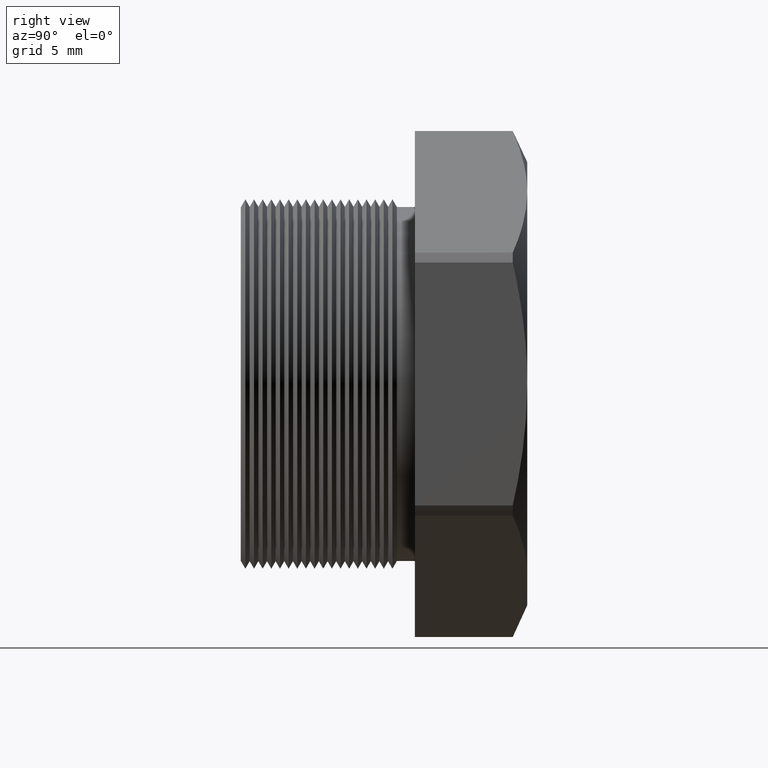
[diagram: clean part render]
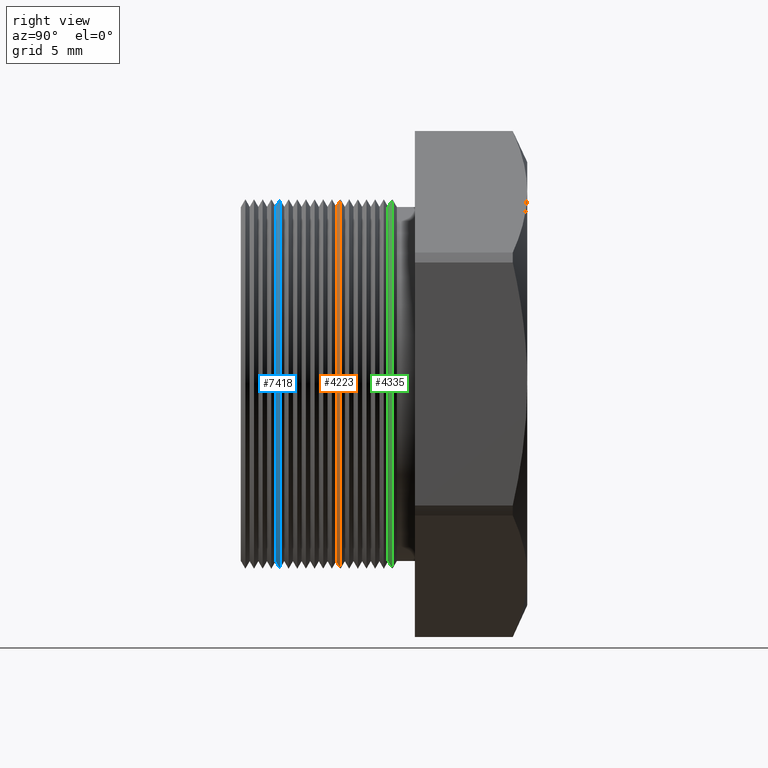
[diagram: same view with three faces highlighted in distinct colors, each labeled with its STEP entity id]
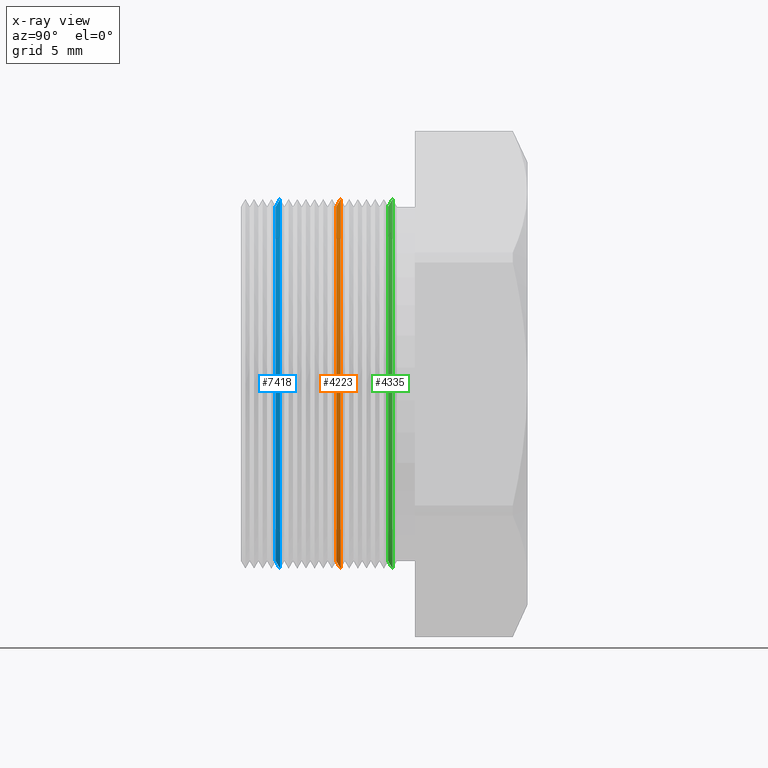
[diagram: x-ray of the same camera — body ghosted, the three highlighted faces saturated]
A machine part, right view with three faces highlighted in distinct colors.
The next image is the same camera in x-ray (body ghosted, the three faces saturated) — at least one of them is partly hidden behind the body in this view.
Their STEP definitions:

[orange] entity #4223 — the highlighted conical surface has half-angle 60 deg.
#1382 = CARTESIAN_POINT ( 'NONE',  ( 0.0000000000000000000, 0.07515489058294794200, -0.3287738815610546400 ) ) ;
#1383 = DIRECTION ( 'NONE',  ( 1.060575238724906300E-016, 0.5000000000000008900, -0.8660254037844380400 ) ) ;
#1384 = VECTOR ( 'NONE', #1383, 39.37007874015748100 ) ;
#1385 = CARTESIAN_POINT ( 'NONE',  ( 4.026318816969965600E-017, 0.07515489058294794200, -0.3287738815610546400 ) ) ;
#1386 = LINE ( 'NONE', #1385, #1384 ) ;
#1387 = DIRECTION ( 'NONE',  ( 0.0000000000000000000, 0.0000000000000000000, 1.000000000000000000 ) ) ;
#1388 = DIRECTION ( 'NONE',  ( -0.0000000000000000000, 1.000000000000000000, -0.0000000000000000000 ) ) ;
#1389 = CARTESIAN_POINT ( 'NONE',  ( 0.0000000000000000000, 0.07515489058294794200, 0.0000000000000000000 ) ) ;
#1390 = AXIS2_PLACEMENT_3D ( 'NONE', #1389, #1388, #1387 ) ;
#1391 = CONICAL_SURFACE ( 'NONE', #1390, 0.3287738815610546400, 1.047197551196596700 ) ;
#1392 = FACE_OUTER_BOUND ( 'NONE', #4224, .T. ) ;
#1417 = CARTESIAN_POINT ( 'NONE',  ( 0.0000000000000000000, 0.06745489058294791600, 0.3154370903427743400 ) ) ;
#1418 = CARTESIAN_POINT ( 'NONE',  ( 3.944654523588147600E-017, 0.06745489058294791600, -0.3154370903427743400 ) ) ;
#1419 = DIRECTION ( 'NONE',  ( 0.0000000000000000000, 0.0000000000000000000, -1.000000000000000000 ) ) ;
#1420 = DIRECTION ( 'NONE',  ( 0.0000000000000000000, -1.000000000000000000, 0.0000000000000000000 ) ) ;
#1421 = CARTESIAN_POINT ( 'NONE',  ( 0.0000000000000000000, 0.06745489058294791600, 0.0000000000000000000 ) ) ;
#1422 = AXIS2_PLACEMENT_3D ( 'NONE', #1421, #1420, #1419 ) ;
#1423 = CIRCLE ( 'NONE', #1422, 0.3154370903427743400 ) ;
#1467 = DIRECTION ( 'NONE',  ( 0.0000000000000000000, 0.5000000000000008900, 0.8660254037844380400 ) ) ;
#1468 = VECTOR ( 'NONE', #1467, 39.37007874015748100 ) ;
#1469 = CARTESIAN_POINT ( 'NONE',  ( 0.0000000000000000000, 0.07515489058294794200, 0.3287738815610546400 ) ) ;
#1470 = LINE ( 'NONE', #1469, #1468 ) ;
#1471 = CARTESIAN_POINT ( 'NONE',  ( 4.026318816969966200E-017, 0.07515489058294794200, 0.3287738815610546400 ) ) ;
#1472 = DIRECTION ( 'NONE',  ( 0.0000000000000000000, 0.0000000000000000000, 1.000000000000000000 ) ) ;
#1473 = DIRECTION ( 'NONE',  ( -0.0000000000000000000, 1.000000000000000000, -0.0000000000000000000 ) ) ;
#1474 = CARTESIAN_POINT ( 'NONE',  ( 0.0000000000000000000, 0.07515489058294794200, 0.0000000000000000000 ) ) ;
#1475 = AXIS2_PLACEMENT_3D ( 'NONE', #1474, #1473, #1472 ) ;
#1476 = CIRCLE ( 'NONE', #1475, 0.3287738815610546400 ) ;
#4223 = ADVANCED_FACE ( 'NONE', ( #1392 ), #1391, .T. ) ;
#4224 = EDGE_LOOP ( 'NONE', ( #4225, #4226, #4229, #4280 ) ) ;
#4225 = ORIENTED_EDGE ( 'NONE', *, *, #4242, .F. ) ;
#4226 = ORIENTED_EDGE ( 'NONE', *, *, #4227, .T. ) ;
#4227 = EDGE_CURVE ( 'NONE', #4243, #4228, #1386, .T. ) ;
#4228 = VERTEX_POINT ( 'NONE', #1382 ) ;
#4229 = ORIENTED_EDGE ( 'NONE', *, *, #4278, .F. ) ;
#4242 = EDGE_CURVE ( 'NONE', #4243, #4244, #1423, .T. ) ;
#4243 = VERTEX_POINT ( 'NONE', #1418 ) ;
#4244 = VERTEX_POINT ( 'NONE', #1417 ) ;
#4278 = EDGE_CURVE ( 'NONE', #4279, #4228, #1476, .T. ) ;
#4279 = VERTEX_POINT ( 'NONE', #1471 ) ;
#4280 = ORIENTED_EDGE ( 'NONE', *, *, #4281, .F. ) ;
#4281 = EDGE_CURVE ( 'NONE', #4244, #4279, #1470, .T. ) ;

[blue] entity #7418 — the highlighted conical surface has half-angle 60 deg.
#3488 = CARTESIAN_POINT ( 'NONE',  ( 4.026318816969966200E-017, -0.03264510941705205100, 0.3287738815610546400 ) ) ;
#3500 = DIRECTION ( 'NONE',  ( 0.0000000000000000000, 0.0000000000000000000, -1.000000000000000000 ) ) ;
#3501 = DIRECTION ( 'NONE',  ( 0.0000000000000000000, -1.000000000000000000, 0.0000000000000000000 ) ) ;
#3502 = CARTESIAN_POINT ( 'NONE',  ( 0.0000000000000000000, -0.04034510941705207700, 0.0000000000000000000 ) ) ;
#3503 = AXIS2_PLACEMENT_3D ( 'NONE', #3502, #3501, #3500 ) ;
#3504 = CIRCLE ( 'NONE', #3503, 0.3154370903427743400 ) ;
#3557 = AXIS2_PLACEMENT_3D ( 'NONE', #3616, #3615, #3614 ) ;
#3558 = CIRCLE ( 'NONE', #3557, 0.3287738815610546400 ) ;
#3559 = DIRECTION ( 'NONE',  ( 0.0000000000000000000, 0.5000000000000008900, 0.8660254037844380400 ) ) ;
#3560 = VECTOR ( 'NONE', #3559, 39.37007874015748100 ) ;
#3561 = CARTESIAN_POINT ( 'NONE',  ( 0.0000000000000000000, -0.03264510941705205100, 0.3287738815610546400 ) ) ;
#3562 = LINE ( 'NONE', #3561, #3560 ) ;
#3614 = DIRECTION ( 'NONE',  ( 0.0000000000000000000, 0.0000000000000000000, 1.000000000000000000 ) ) ;
#3615 = DIRECTION ( 'NONE',  ( -0.0000000000000000000, 1.000000000000000000, -0.0000000000000000000 ) ) ;
#3616 = CARTESIAN_POINT ( 'NONE',  ( 0.0000000000000000000, -0.03264510941705205100, 0.0000000000000000000 ) ) ;
#3748 = CONICAL_SURFACE ( 'NONE', #3992, 0.3287738815610546400, 1.047197551196596700 ) ;
#3980 = CARTESIAN_POINT ( 'NONE',  ( 3.944654523588147600E-017, -0.04034510941705207700, -0.3154370903427743400 ) ) ;
#3992 = AXIS2_PLACEMENT_3D ( 'NONE', #3994, #3993, #4168 ) ;
#3993 = DIRECTION ( 'NONE',  ( -0.0000000000000000000, 1.000000000000000000, -0.0000000000000000000 ) ) ;
#3994 = CARTESIAN_POINT ( 'NONE',  ( 0.0000000000000000000, -0.03264510941705205100, 0.0000000000000000000 ) ) ;
#3995 = FACE_OUTER_BOUND ( 'NONE', #7414, .T. ) ;
#3996 = DIRECTION ( 'NONE',  ( 1.060575238724906300E-016, 0.5000000000000008900, -0.8660254037844380400 ) ) ;
#3997 = VECTOR ( 'NONE', #3996, 39.37007874015748100 ) ;
#3998 = CARTESIAN_POINT ( 'NONE',  ( 4.026318816969965600E-017, -0.03264510941705205100, -0.3287738815610546400 ) ) ;
#3999 = LINE ( 'NONE', #3998, #3997 ) ;
#4000 = CARTESIAN_POINT ( 'NONE',  ( 0.0000000000000000000, -0.03264510941705205100, -0.3287738815610546400 ) ) ;
#4033 = CARTESIAN_POINT ( 'NONE',  ( 0.0000000000000000000, -0.04034510941705207700, 0.3154370903427743400 ) ) ;
#4168 = DIRECTION ( 'NONE',  ( 0.0000000000000000000, 0.0000000000000000000, 1.000000000000000000 ) ) ;
#7100 = ORIENTED_EDGE ( 'NONE', *, *, #7171, .F. ) ;
#7101 = VERTEX_POINT ( 'NONE', #3488 ) ;
#7132 = EDGE_CURVE ( 'NONE', #7397, #7423, #3504, .T. ) ;
#7171 = EDGE_CURVE ( 'NONE', #7423, #7101, #3562, .T. ) ;
#7173 = EDGE_CURVE ( 'NONE', #7101, #7413, #3558, .T. ) ;
#7177 = ORIENTED_EDGE ( 'NONE', *, *, #7173, .F. ) ;
#7397 = VERTEX_POINT ( 'NONE', #3980 ) ;
#7413 = VERTEX_POINT ( 'NONE', #4000 ) ;
#7414 = EDGE_LOOP ( 'NONE', ( #7415, #7416, #7177, #7100 ) ) ;
#7415 = ORIENTED_EDGE ( 'NONE', *, *, #7132, .F. ) ;
#7416 = ORIENTED_EDGE ( 'NONE', *, *, #7417, .T. ) ;
#7417 = EDGE_CURVE ( 'NONE', #7397, #7413, #3999, .T. ) ;
#7418 = ADVANCED_FACE ( 'NONE', ( #3995 ), #3748, .T. ) ;
#7423 = VERTEX_POINT ( 'NONE', #4033 ) ;

[green] entity #4335 — the highlighted conical surface has half-angle 60 deg.
#1560 = CARTESIAN_POINT ( 'NONE',  ( 0.0000000000000000000, 0.1598548905829479100, 0.3154370903427743400 ) ) ;
#1561 = CARTESIAN_POINT ( 'NONE',  ( 3.944654523588147600E-017, 0.1598548905829479100, -0.3154370903427743400 ) ) ;
#1562 = DIRECTION ( 'NONE',  ( 0.0000000000000000000, 0.0000000000000000000, -1.000000000000000000 ) ) ;
#1563 = DIRECTION ( 'NONE',  ( 0.0000000000000000000, -1.000000000000000000, 0.0000000000000000000 ) ) ;
#1564 = CARTESIAN_POINT ( 'NONE',  ( 0.0000000000000000000, 0.1598548905829479100, 0.0000000000000000000 ) ) ;
#1565 = AXIS2_PLACEMENT_3D ( 'NONE', #1564, #1563, #1562 ) ;
#1571 = CIRCLE ( 'NONE', #1565, 0.3154370903427743400 ) ;
#1608 = DIRECTION ( 'NONE',  ( 0.0000000000000000000, 0.0000000000000000000, 1.000000000000000000 ) ) ;
#1609 = DIRECTION ( 'NONE',  ( -0.0000000000000000000, 1.000000000000000000, -0.0000000000000000000 ) ) ;
#1610 = CARTESIAN_POINT ( 'NONE',  ( 0.0000000000000000000, 0.1675548905829479500, 0.0000000000000000000 ) ) ;
#1611 = AXIS2_PLACEMENT_3D ( 'NONE', #1610, #1609, #1608 ) ;
#1612 = CONICAL_SURFACE ( 'NONE', #1611, 0.3287738815610546400, 1.047197551196596700 ) ;
#1613 = FACE_OUTER_BOUND ( 'NONE', #4336, .T. ) ;
#1680 = DIRECTION ( 'NONE',  ( 0.0000000000000000000, 0.5000000000000008900, 0.8660254037844380400 ) ) ;
#1681 = VECTOR ( 'NONE', #1680, 39.37007874015748100 ) ;
#1682 = CARTESIAN_POINT ( 'NONE',  ( 0.0000000000000000000, 0.1675548905829479500, 0.3287738815610546400 ) ) ;
#1683 = LINE ( 'NONE', #1682, #1681 ) ;
#1684 = CARTESIAN_POINT ( 'NONE',  ( 4.026318816969966200E-017, 0.1675548905829479500, 0.3287738815610546400 ) ) ;
#1685 = DIRECTION ( 'NONE',  ( 0.0000000000000000000, 0.0000000000000000000, 1.000000000000000000 ) ) ;
#1686 = DIRECTION ( 'NONE',  ( -0.0000000000000000000, 1.000000000000000000, -0.0000000000000000000 ) ) ;
#1687 = CARTESIAN_POINT ( 'NONE',  ( 0.0000000000000000000, 0.1675548905829479500, 0.0000000000000000000 ) ) ;
#1688 = AXIS2_PLACEMENT_3D ( 'NONE', #1687, #1686, #1685 ) ;
#1689 = CIRCLE ( 'NONE', #1688, 0.3287738815610546400 ) ;
#1690 = CARTESIAN_POINT ( 'NONE',  ( 0.0000000000000000000, 0.1675548905829479500, -0.3287738815610546400 ) ) ;
#1691 = DIRECTION ( 'NONE',  ( 1.060575238724906300E-016, 0.5000000000000008900, -0.8660254037844380400 ) ) ;
#1692 = VECTOR ( 'NONE', #1691, 39.37007874015748100 ) ;
#1693 = CARTESIAN_POINT ( 'NONE',  ( 4.026318816969965600E-017, 0.1675548905829479500, -0.3287738815610546400 ) ) ;
#1694 = LINE ( 'NONE', #1693, #1692 ) ;
#4327 = EDGE_CURVE ( 'NONE', #4328, #4329, #1571, .T. ) ;
#4328 = VERTEX_POINT ( 'NONE', #1561 ) ;
#4329 = VERTEX_POINT ( 'NONE', #1560 ) ;
#4335 = ADVANCED_FACE ( 'NONE', ( #1613 ), #1612, .T. ) ;
#4336 = EDGE_LOOP ( 'NONE', ( #4337, #4392, #4395, #4398 ) ) ;
#4337 = ORIENTED_EDGE ( 'NONE', *, *, #4327, .F. ) ;
#4392 = ORIENTED_EDGE ( 'NONE', *, *, #4393, .T. ) ;
#4393 = EDGE_CURVE ( 'NONE', #4328, #4394, #1694, .T. ) ;
#4394 = VERTEX_POINT ( 'NONE', #1690 ) ;
#4395 = ORIENTED_EDGE ( 'NONE', *, *, #4396, .F. ) ;
#4396 = EDGE_CURVE ( 'NONE', #4397, #4394, #1689, .T. ) ;
#4397 = VERTEX_POINT ( 'NONE', #1684 ) ;
#4398 = ORIENTED_EDGE ( 'NONE', *, *, #4399, .F. ) ;
#4399 = EDGE_CURVE ( 'NONE', #4329, #4397, #1683, .T. ) ;